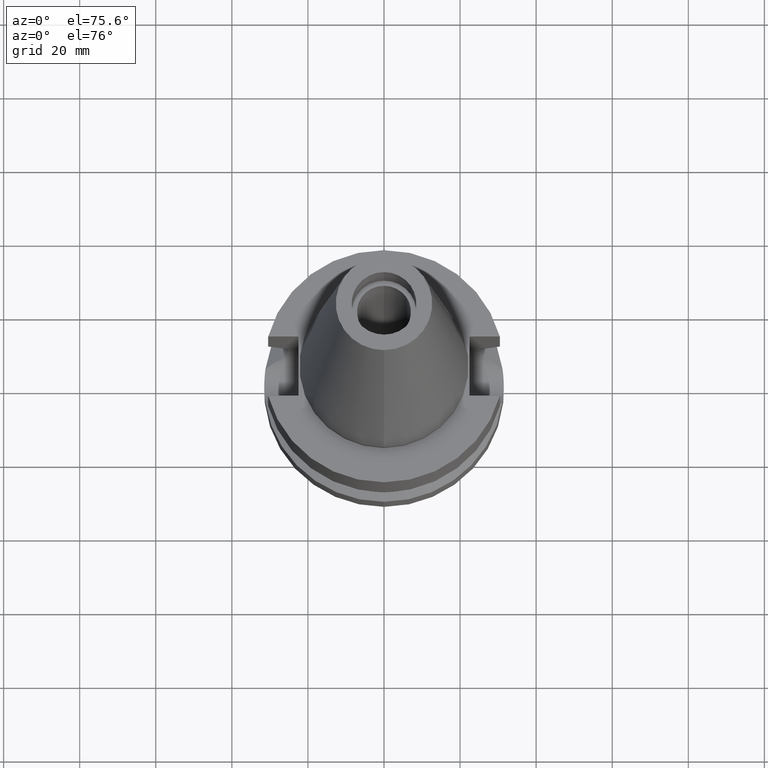
[diagram: clean part render]
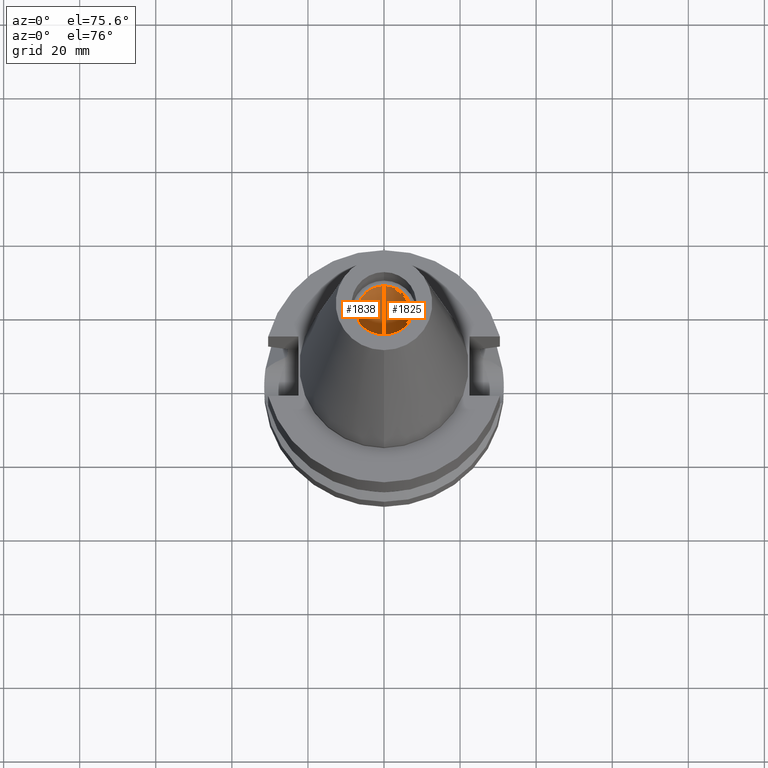
[diagram: same view with one multi-face feature highlighted, each face labeled with its STEP entity id]
A machine part, auxiliary view. The highlighted faces form ONE feature: a constant-radius fillet chain: 2 tangent blend faces with common blend radius 7.1 mm. The faces share edges in the B-rep.
Their STEP definitions:
[1] entity #1838 (Cylinder):
#896=CARTESIAN_POINT('',(0.E0,2.129905713077E-14,-5.684341886081E-14));
#897=DIRECTION('',(0.E0,0.E0,-1.E0));
#898=DIRECTION('',(0.E0,-1.E0,0.E0));
#899=AXIS2_PLACEMENT_3D('',#896,#897,#898);
#911=DIRECTION('',(0.E0,0.E0,1.E0));
#912=VECTOR('',#911,5.64E1);
#913=CARTESIAN_POINT('',(0.E0,7.1E0,-5.684341886081E-14));
#914=LINE('',#913,#912);
#926=DIRECTION('',(0.E0,0.E0,1.E0));
#927=VECTOR('',#926,5.64E1);
#928=CARTESIAN_POINT('',(0.E0,-7.1E0,-5.684341886081E-14));
#929=LINE('',#928,#927);
#957=CARTESIAN_POINT('',(0.E0,2.129905713077E-14,5.64E1));
#958=DIRECTION('',(0.E0,0.E0,1.E0));
#959=DIRECTION('',(0.E0,1.E0,0.E0));
#960=AXIS2_PLACEMENT_3D('',#957,#958,#959);
#991=CARTESIAN_POINT('',(0.E0,-7.1E0,5.64E1));
#992=CARTESIAN_POINT('',(0.E0,7.1E0,5.64E1));
#993=VERTEX_POINT('',#991);
#994=VERTEX_POINT('',#992);
#995=CARTESIAN_POINT('',(0.E0,7.1E0,-5.684341886081E-14));
#996=VERTEX_POINT('',#995);
#997=CARTESIAN_POINT('',(0.E0,-7.1E0,-5.684341886081E-14));
#998=VERTEX_POINT('',#997);
#1826=CARTESIAN_POINT('',(0.E0,2.129905713077E-14,7.392E1));
#1827=DIRECTION('',(0.E0,0.E0,-1.E0));
#1828=DIRECTION('',(0.E0,-1.E0,0.E0));
#1829=AXIS2_PLACEMENT_3D('',#1826,#1827,#1828);
#1830=CYLINDRICAL_SURFACE('',#1829,7.1E0);
#1831=ORIENTED_EDGE('',*,*,#1816,.F.);
#1832=ORIENTED_EDGE('',*,*,#1793,.F.);
#1833=ORIENTED_EDGE('',*,*,#1820,.T.);
#1835=ORIENTED_EDGE('',*,*,#1834,.F.);
#1836=EDGE_LOOP('',(#1831,#1832,#1833,#1835));
#1837=FACE_OUTER_BOUND('',#1836,.F.);
#900=CIRCLE('',#899,7.1E0);
#961=CIRCLE('',#960,7.1E0);
#1793=EDGE_CURVE('',#998,#996,#900,.T.);
#1816=EDGE_CURVE('',#996,#994,#914,.T.);
#1820=EDGE_CURVE('',#998,#993,#929,.T.);
#1834=EDGE_CURVE('',#994,#993,#961,.T.);
#1838=ADVANCED_FACE('',(#1837),#1830,.F.);
[2] entity #1825 (Cylinder):
#911=DIRECTION('',(0.E0,0.E0,1.E0));
#912=VECTOR('',#911,5.64E1);
#913=CARTESIAN_POINT('',(0.E0,7.1E0,-5.684341886081E-14));
#914=LINE('',#913,#912);
#918=CARTESIAN_POINT('',(0.E0,2.129905713077E-14,-5.684341886081E-14));
#919=DIRECTION('',(0.E0,0.E0,1.E0));
#920=DIRECTION('',(0.E0,-1.E0,0.E0));
#921=AXIS2_PLACEMENT_3D('',#918,#919,#920);
#926=DIRECTION('',(0.E0,0.E0,1.E0));
#927=VECTOR('',#926,5.64E1);
#928=CARTESIAN_POINT('',(0.E0,-7.1E0,-5.684341886081E-14));
#929=LINE('',#928,#927);
#949=CARTESIAN_POINT('',(0.E0,2.129905713077E-14,5.64E1));
#950=DIRECTION('',(0.E0,0.E0,1.E0));
#951=DIRECTION('',(0.E0,-1.E0,0.E0));
#952=AXIS2_PLACEMENT_3D('',#949,#950,#951);
#991=CARTESIAN_POINT('',(0.E0,-7.1E0,5.64E1));
#992=CARTESIAN_POINT('',(0.E0,7.1E0,5.64E1));
#993=VERTEX_POINT('',#991);
#994=VERTEX_POINT('',#992);
#995=CARTESIAN_POINT('',(0.E0,7.1E0,-5.684341886081E-14));
#996=VERTEX_POINT('',#995);
#997=CARTESIAN_POINT('',(0.E0,-7.1E0,-5.684341886081E-14));
#998=VERTEX_POINT('',#997);
#1811=CARTESIAN_POINT('',(0.E0,2.129905713077E-14,7.392E1));
#1812=DIRECTION('',(0.E0,0.E0,-1.E0));
#1813=DIRECTION('',(0.E0,-1.E0,0.E0));
#1814=AXIS2_PLACEMENT_3D('',#1811,#1812,#1813);
#1815=CYLINDRICAL_SURFACE('',#1814,7.1E0);
#1817=ORIENTED_EDGE('',*,*,#1816,.T.);
#1819=ORIENTED_EDGE('',*,*,#1818,.F.);
#1821=ORIENTED_EDGE('',*,*,#1820,.F.);
#1822=ORIENTED_EDGE('',*,*,#1804,.T.);
#1823=EDGE_LOOP('',(#1817,#1819,#1821,#1822));
#1824=FACE_OUTER_BOUND('',#1823,.F.);
#922=CIRCLE('',#921,7.1E0);
#953=CIRCLE('',#952,7.1E0);
#1804=EDGE_CURVE('',#998,#996,#922,.T.);
#1816=EDGE_CURVE('',#996,#994,#914,.T.);
#1818=EDGE_CURVE('',#993,#994,#953,.T.);
#1820=EDGE_CURVE('',#998,#993,#929,.T.);
#1825=ADVANCED_FACE('',(#1824),#1815,.F.);